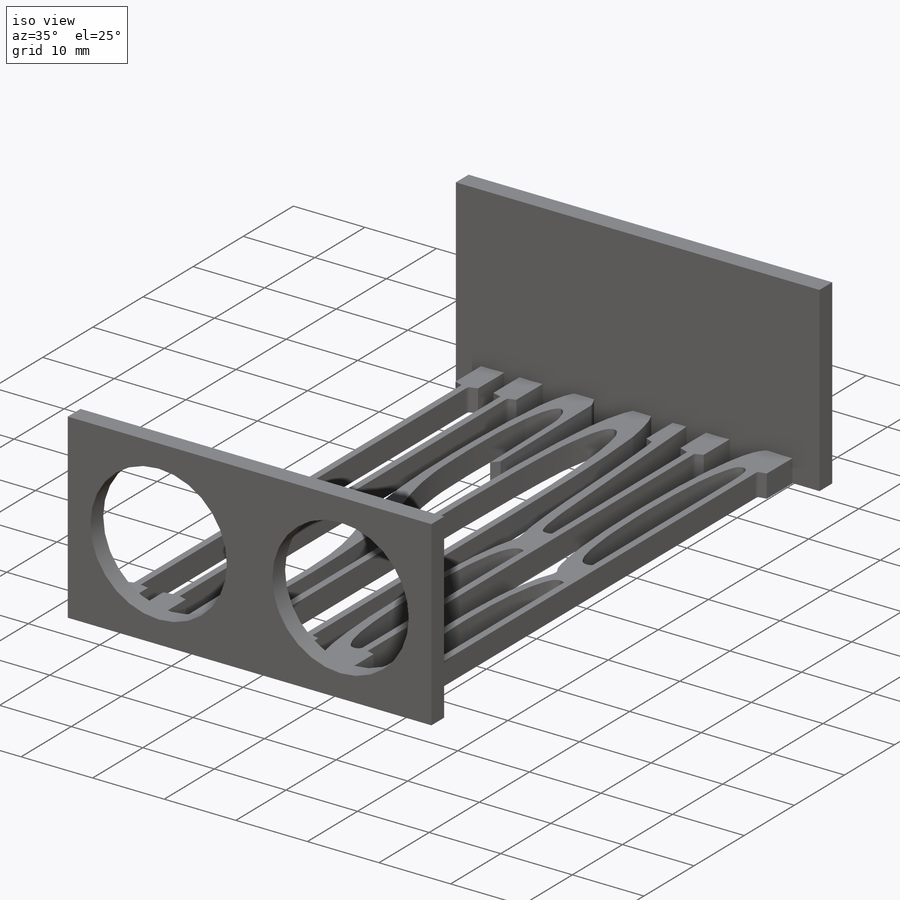
[diagram: iso view]
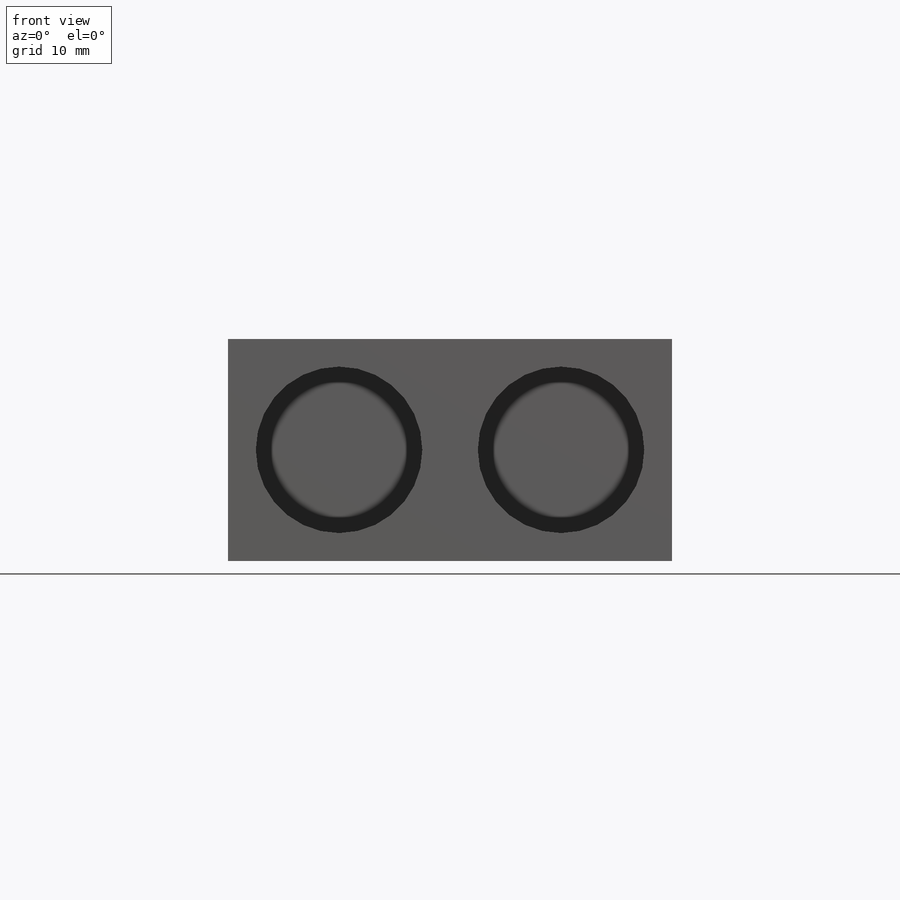
[diagram: front view]
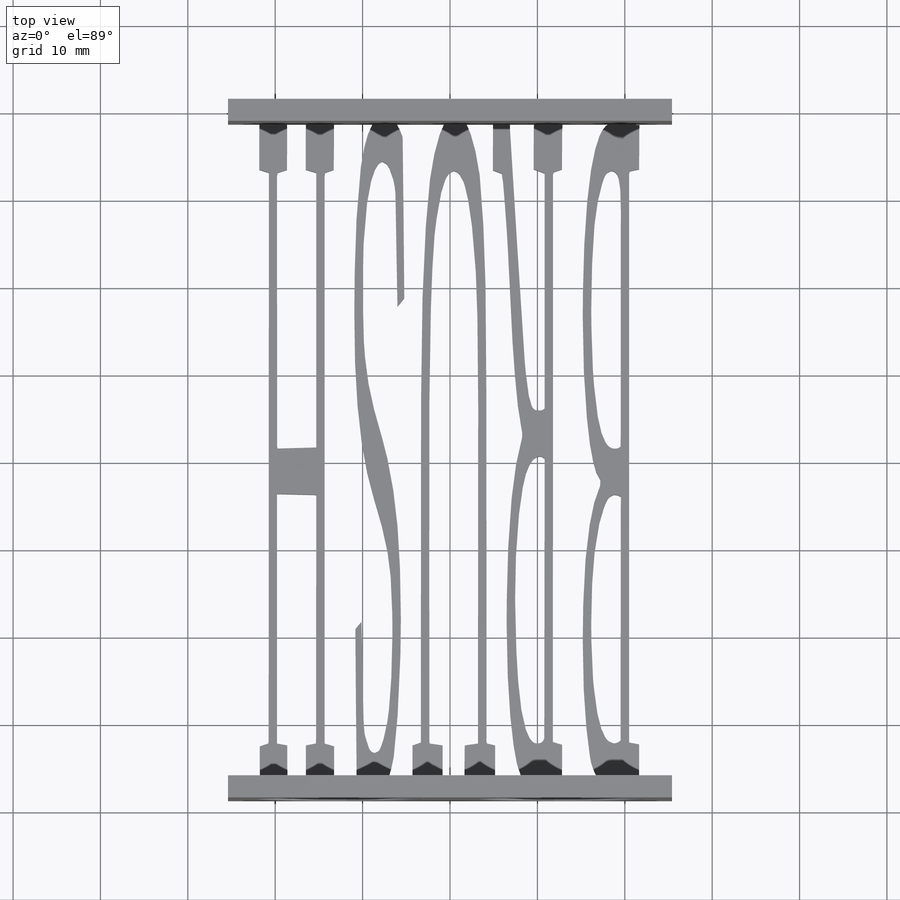
[diagram: top view]
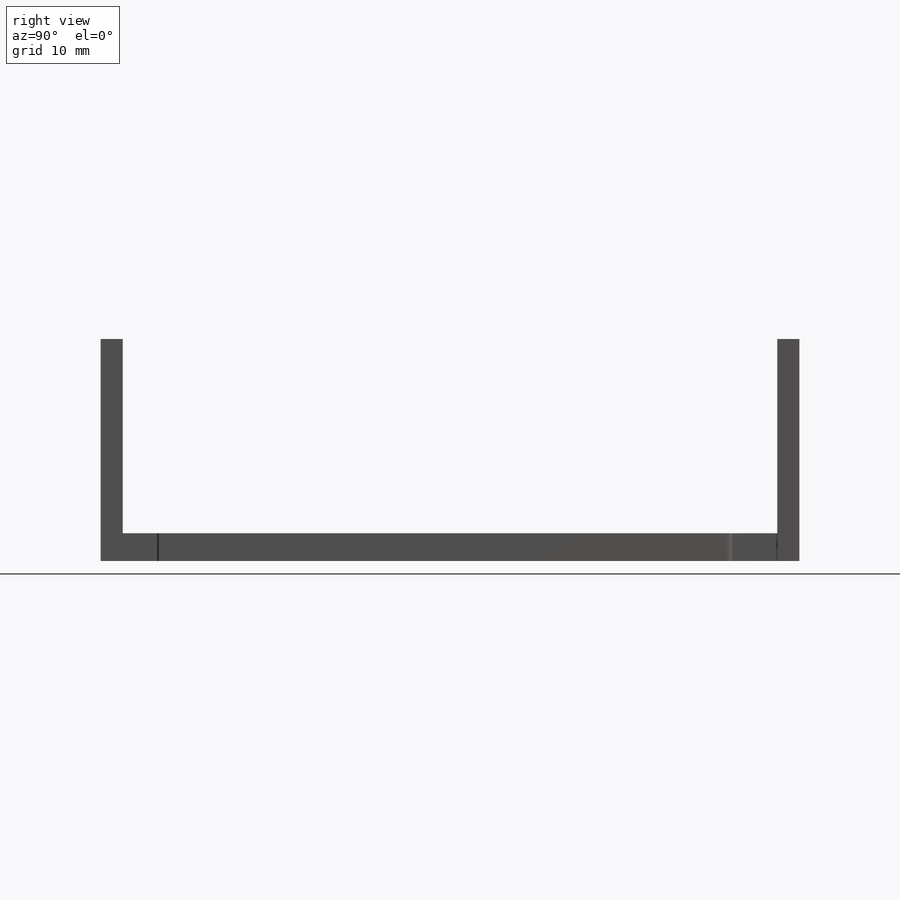
[diagram: right view]
SOLIDWORKS PART (.sldprt)
format: sldprt  version: not decoded by parser v0  size: 457,728 bytes
history: native  units: mm
features: sketch x5, extrude x4, material x1, cut_extrude x1, mirror x1 (+13 scaffold rows collapsed)
feature tree (25):
  scaffold x13  (default folders/planes/origin — collapsed)
  material  "Material <not specified>"
  sketch  "Sketch1"  dims[D1=50.8mm D2=2.54mm]
  extrude  "Boss-Extrude1"  Depth=25.4mm
  sketch  "Sketch4"
  extrude  "Boss-Extrude3"  Depth=3.175mm
  sketch  "Sketch6"
  extrude  "Boss-Extrude8"  Depth=1.27mm
  sketch  "Sketch7"
  extrude  "Boss-Extrude9"  Depth=1.27mm
  sketch  "Sketch8"  dims[D1=19.05mm D2=12.7mm D3=12.7mm]
  cut_extrude  "Cut-Extrude1"  Depth=2.54mm
  mirror  "Mirror1"
decode coverage: 7 of 11 modeling features carry decoded parameters
note: suppression state not decoded; provenance and decode notes live in map.json
